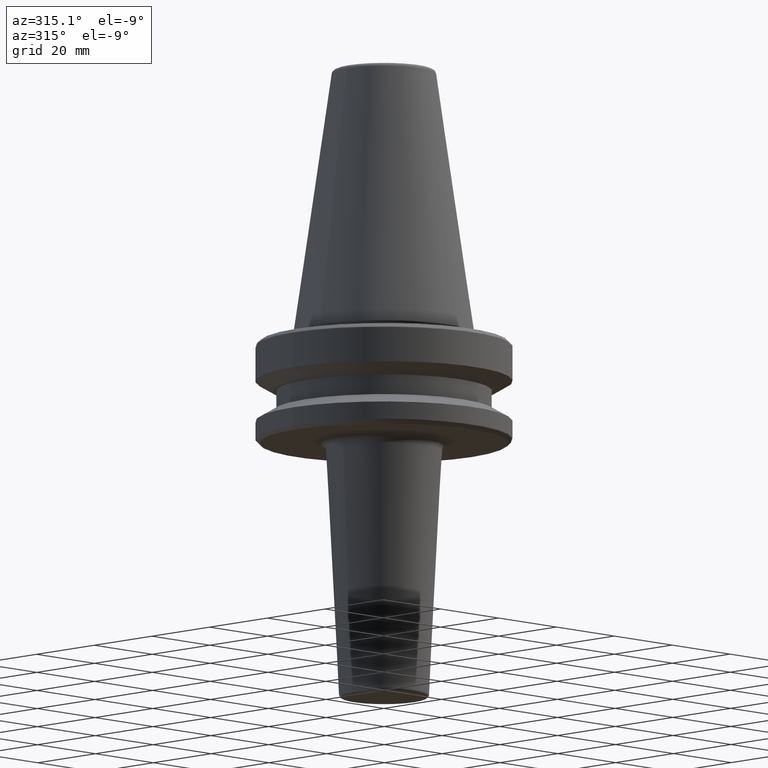
[diagram: clean part render]
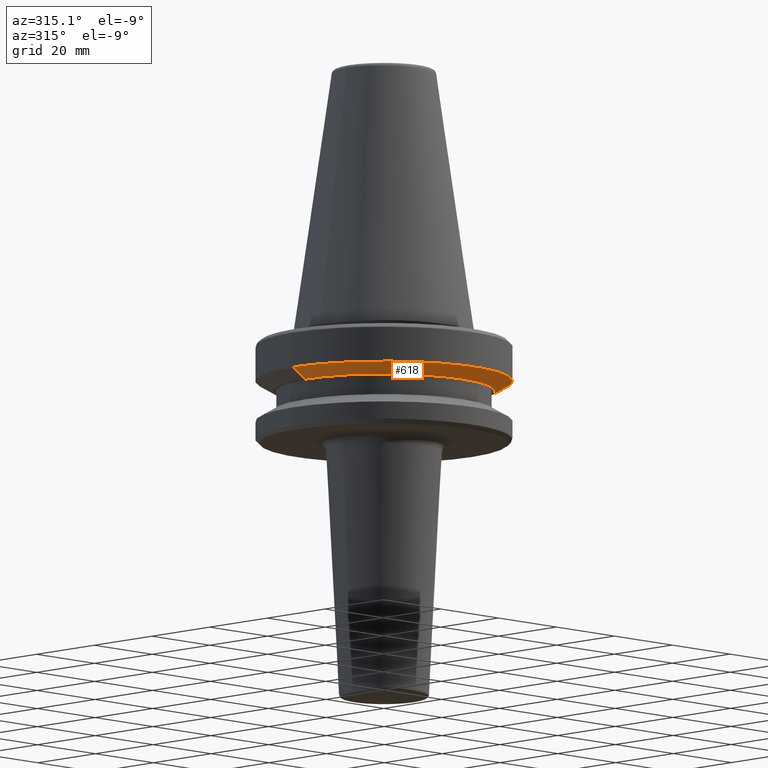
[diagram: same view with one face highlighted and labeled with its STEP entity id]
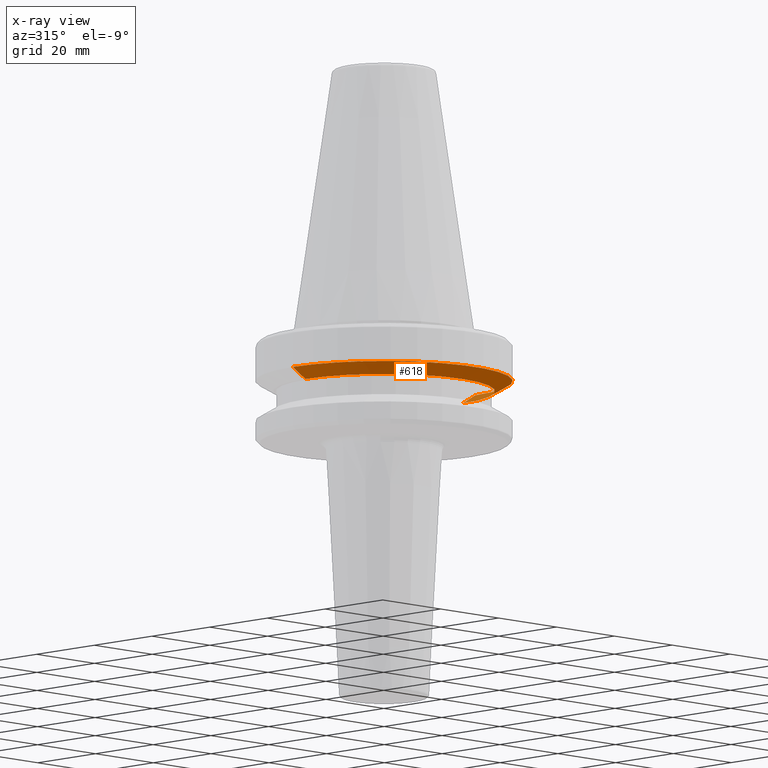
[diagram: x-ray of the same camera — body ghosted, the highlighted face saturated]
A machine part, auxiliary view. The second image highlights one B-rep face of the part: STEP entity #618.
The next image is the same camera in x-ray: the body ghosted, the highlighted face saturated — about 4% of this face is hidden behind the body in this view.
In plain terms, the highlighted conical surface has half-angle 60 deg.
Its self-contained STEP definition (entity closure, byte-faithful):
#5 = DIRECTION ( 'NONE',  ( -0.0000000000000000000, -0.0000000000000000000, -1.000000000000000000 ) ) ;
#34 = VECTOR ( 'NONE', #756, 1000.000000000000000 ) ;
#64 = VECTOR ( 'NONE', #597, 1000.000000000000000 ) ;
#77 = CONICAL_SURFACE ( 'NONE', #859, 31.50000000000000000, 1.047197551196599600 ) ;
#127 = FACE_OUTER_BOUND ( 'NONE', #846, .T. ) ;
#245 = DIRECTION ( 'NONE',  ( 1.000000000000000000, 0.0000000000000000000, 0.0000000000000000000 ) ) ;
#250 = CIRCLE ( 'NONE', #338, 31.50000000000000000 ) ;
#282 = CARTESIAN_POINT ( 'NONE',  ( -31.50000000000000000, 3.857637417314162700E-015, -11.60014666881784400 ) ) ;
#289 = LINE ( 'NONE', #290, #64 ) ;
#290 = CARTESIAN_POINT ( 'NONE',  ( 31.50000000000000000, 0.0000000000000000000, -11.60014666881784400 ) ) ;
#298 = CARTESIAN_POINT ( 'NONE',  ( 31.50000000000000000, 0.0000000000000000000, -11.60014666881784400 ) ) ;
#302 = CARTESIAN_POINT ( 'NONE',  ( 27.17012701892217300, 0.0000000000000000000, -14.10000000000000500 ) ) ;
#320 = EDGE_CURVE ( 'NONE', #472, #353, #658, .T. ) ;
#324 = EDGE_CURVE ( 'NONE', #353, #1191, #978, .T. ) ;
#338 = AXIS2_PLACEMENT_3D ( 'NONE', #561, #5, #650 ) ;
#353 = VERTEX_POINT ( 'NONE', #758 ) ;
#372 = DIRECTION ( 'NONE',  ( -0.0000000000000000000, -0.0000000000000000000, -1.000000000000000000 ) ) ;
#378 = AXIS2_PLACEMENT_3D ( 'NONE', #928, #372, #1022 ) ;
#384 = ORIENTED_EDGE ( 'NONE', *, *, #320, .F. ) ;
#395 = EDGE_CURVE ( 'NONE', #472, #1062, #289, .T. ) ;
#472 = VERTEX_POINT ( 'NONE', #302 ) ;
#512 = ORIENTED_EDGE ( 'NONE', *, *, #395, .T. ) ;
#561 = CARTESIAN_POINT ( 'NONE',  ( 0.0000000000000000000, 0.0000000000000000000, -11.60014666881784400 ) ) ;
#597 = DIRECTION ( 'NONE',  ( 0.8660254037844396000, 0.0000000000000000000, 0.4999999999999983900 ) ) ;
#618 = ADVANCED_FACE ( 'NONE', ( #127 ), #77, .T. ) ;
#650 = DIRECTION ( 'NONE',  ( -1.000000000000000000, 0.0000000000000000000, 0.0000000000000000000 ) ) ;
#658 = CIRCLE ( 'NONE', #378, 27.17012701892217300 ) ;
#702 = CARTESIAN_POINT ( 'NONE',  ( -31.50000000000000000, 3.857637417314162700E-015, -11.60014666881784400 ) ) ;
#756 = DIRECTION ( 'NONE',  ( -0.8660254037844396000, 1.060575238724908000E-016, 0.4999999999999983900 ) ) ;
#758 = CARTESIAN_POINT ( 'NONE',  ( -27.17012701892217300, 3.592509162964584100E-015, -14.10000000000000500 ) ) ;
#764 = EDGE_CURVE ( 'NONE', #1062, #1191, #250, .T. ) ;
#846 = EDGE_LOOP ( 'NONE', ( #1076, #384, #512, #1146 ) ) ;
#859 = AXIS2_PLACEMENT_3D ( 'NONE', #1085, #970, #245 ) ;
#928 = CARTESIAN_POINT ( 'NONE',  ( 0.0000000000000000000, 0.0000000000000000000, -14.10000000000000500 ) ) ;
#970 = DIRECTION ( 'NONE',  ( 0.0000000000000000000, 0.0000000000000000000, 1.000000000000000000 ) ) ;
#978 = LINE ( 'NONE', #282, #34 ) ;
#1022 = DIRECTION ( 'NONE',  ( -1.000000000000000000, 0.0000000000000000000, 0.0000000000000000000 ) ) ;
#1062 = VERTEX_POINT ( 'NONE', #298 ) ;
#1076 = ORIENTED_EDGE ( 'NONE', *, *, #324, .F. ) ;
#1085 = CARTESIAN_POINT ( 'NONE',  ( 0.0000000000000000000, 0.0000000000000000000, -11.60014666881784400 ) ) ;
#1146 = ORIENTED_EDGE ( 'NONE', *, *, #764, .T. ) ;
#1191 = VERTEX_POINT ( 'NONE', #702 ) ;